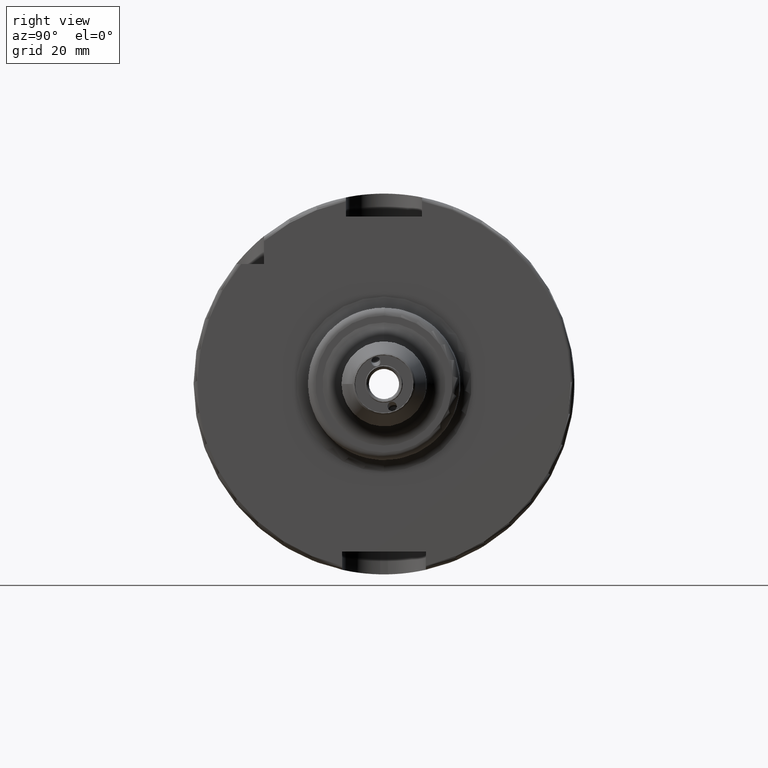
[diagram: clean part render]
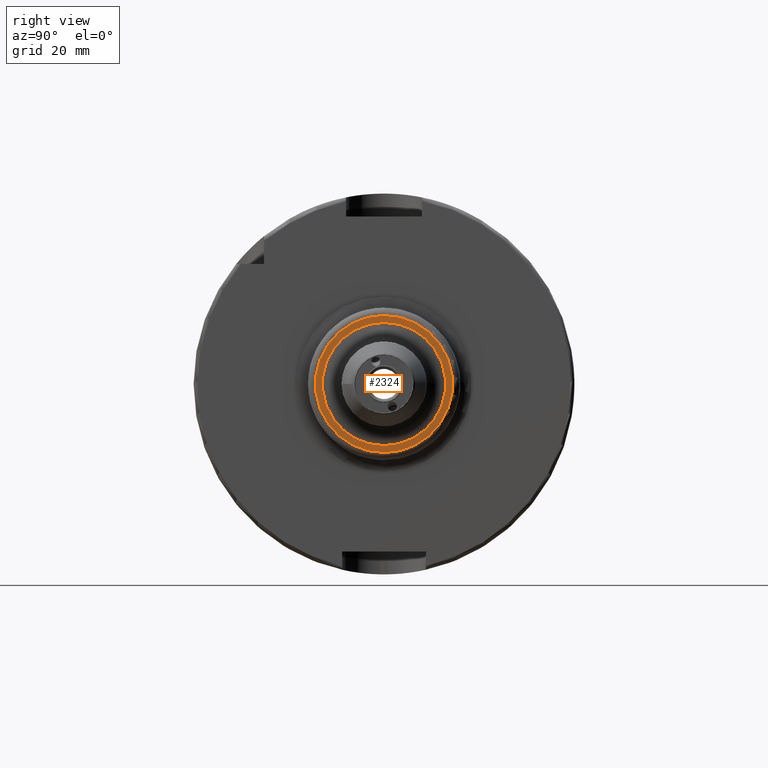
[diagram: same view with one face highlighted and labeled with its STEP entity id]
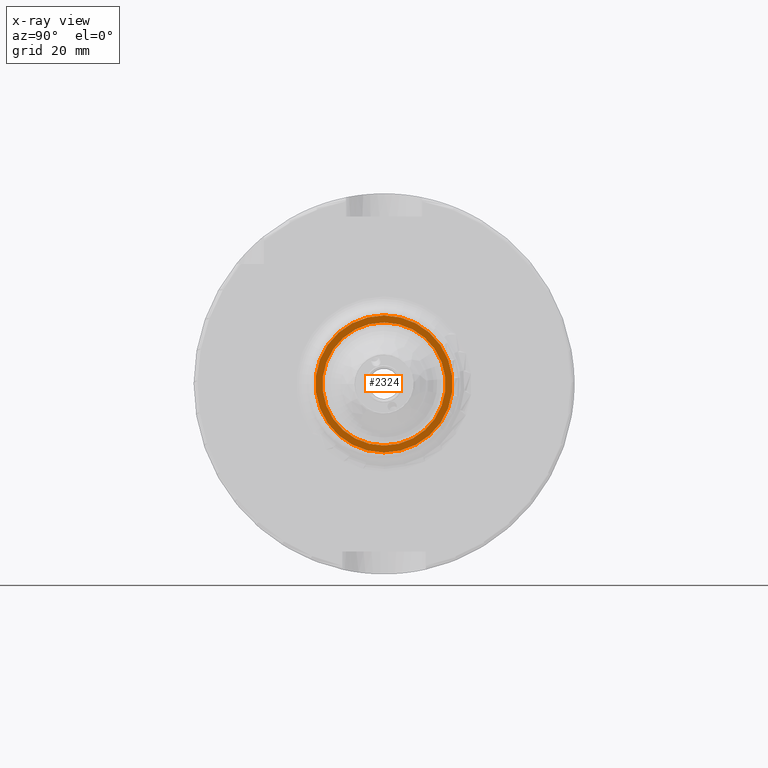
[diagram: x-ray of the same camera — body ghosted, the highlighted face saturated]
A machine part, right view. The second image highlights one B-rep face of the part: STEP entity #2324.
The next image is the same camera in x-ray: the body ghosted, the highlighted face saturated — about 0% of this face is hidden behind the body in this view.
In plain terms, the highlighted planar face has unit normal (1, 0, 0).
Its self-contained STEP definition (entity closure, byte-faithful):
#447=FACE_BOUND('',#630,.T.);
#490=FACE_OUTER_BOUND('',#629,.T.);
#629=EDGE_LOOP('',(#1649));
#630=EDGE_LOOP('',(#1650));
#784=CIRCLE('',#2513,16.176);
#786=CIRCLE('',#2516,18.);
#953=VERTEX_POINT('',#3872);
#954=VERTEX_POINT('',#3876);
#1218=EDGE_CURVE('',#953,#953,#784,.T.);
#1220=EDGE_CURVE('',#954,#954,#786,.T.);
#1649=ORIENTED_EDGE('',*,*,#1220,.F.);
#1650=ORIENTED_EDGE('',*,*,#1218,.F.);
#2267=PLANE('',#2515);
#2324=ADVANCED_FACE('',(#490,#447),#2267,.T.);
#2513=AXIS2_PLACEMENT_3D('',#3873,#2878,#2879);
#2515=AXIS2_PLACEMENT_3D('',#3875,#2882,#2883);
#2516=AXIS2_PLACEMENT_3D('',#3877,#2884,#2885);
#2878=DIRECTION('center_axis',(1.,0.,0.));
#2879=DIRECTION('ref_axis',(0.,-1.,1.83697019872103E-16));
#2882=DIRECTION('center_axis',(1.,0.,0.));
#2883=DIRECTION('ref_axis',(0.,0.,-1.));
#2884=DIRECTION('center_axis',(-1.,0.,0.));
#2885=DIRECTION('ref_axis',(0.,-1.,1.83697019872103E-16));
#3872=CARTESIAN_POINT('',(44.,-1.98098866230076E-15,16.176));
#3873=CARTESIAN_POINT('Origin',(44.,0.,0.));
#3875=CARTESIAN_POINT('Origin',(44.,11.176,0.));
#3876=CARTESIAN_POINT('',(44.,-2.20436423846524E-15,18.));
#3877=CARTESIAN_POINT('Origin',(44.,0.,0.));